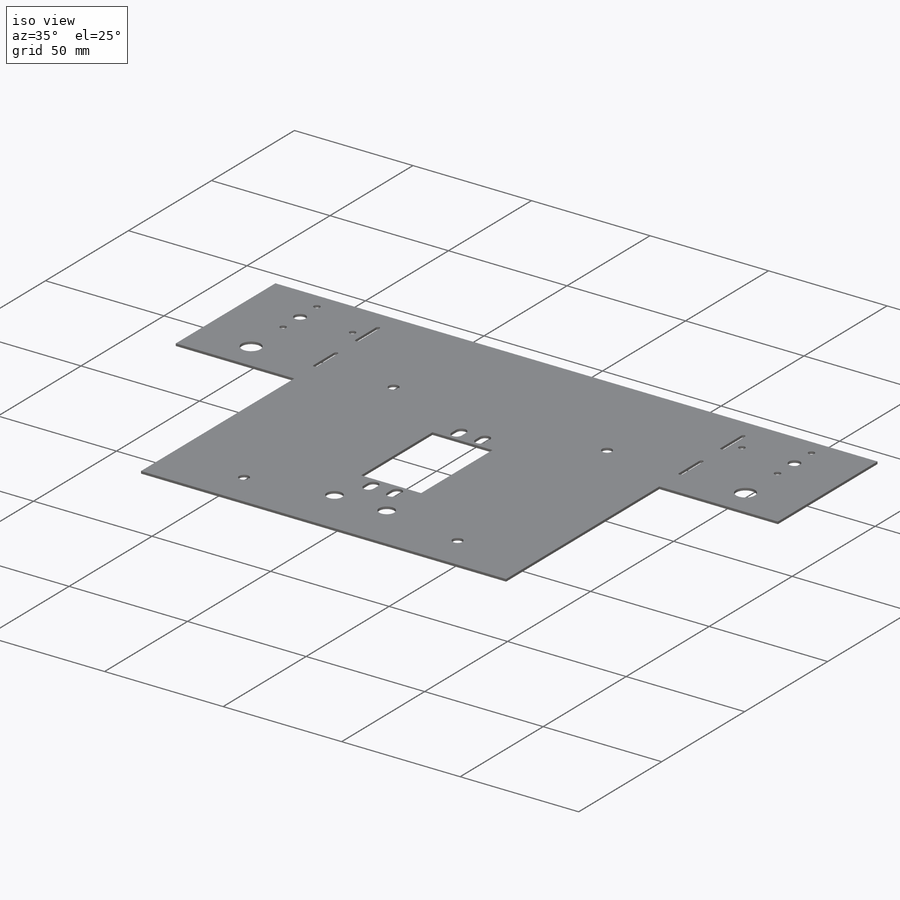
[diagram: iso view]
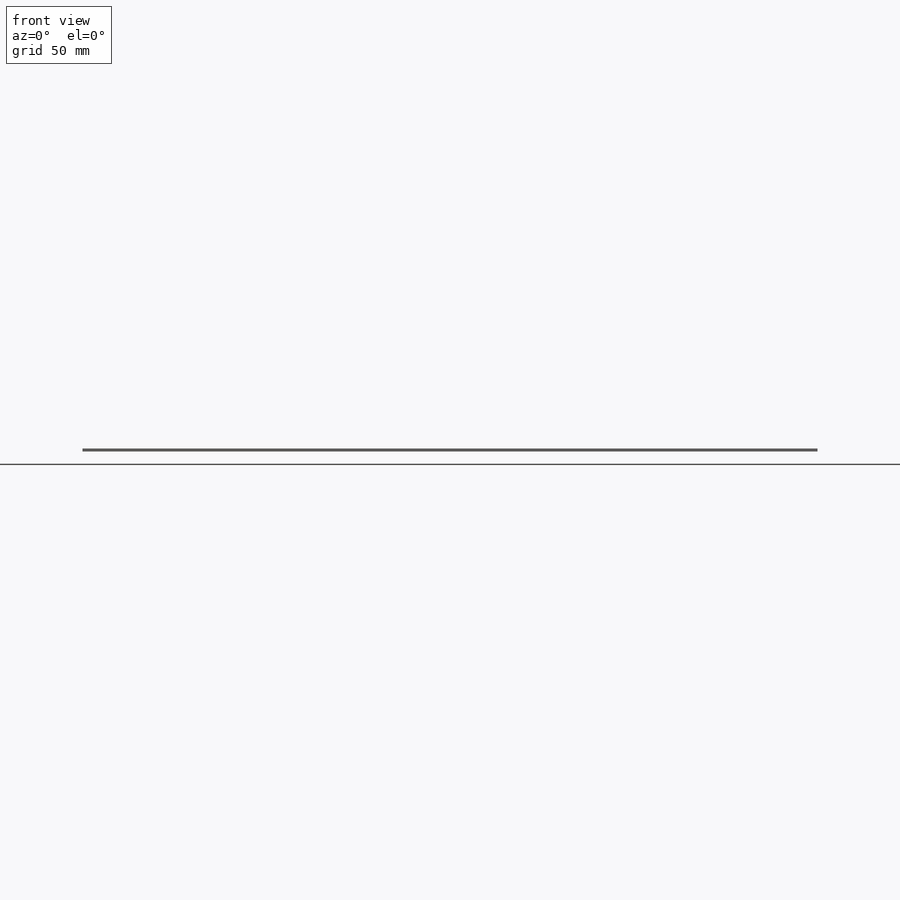
[diagram: front view]
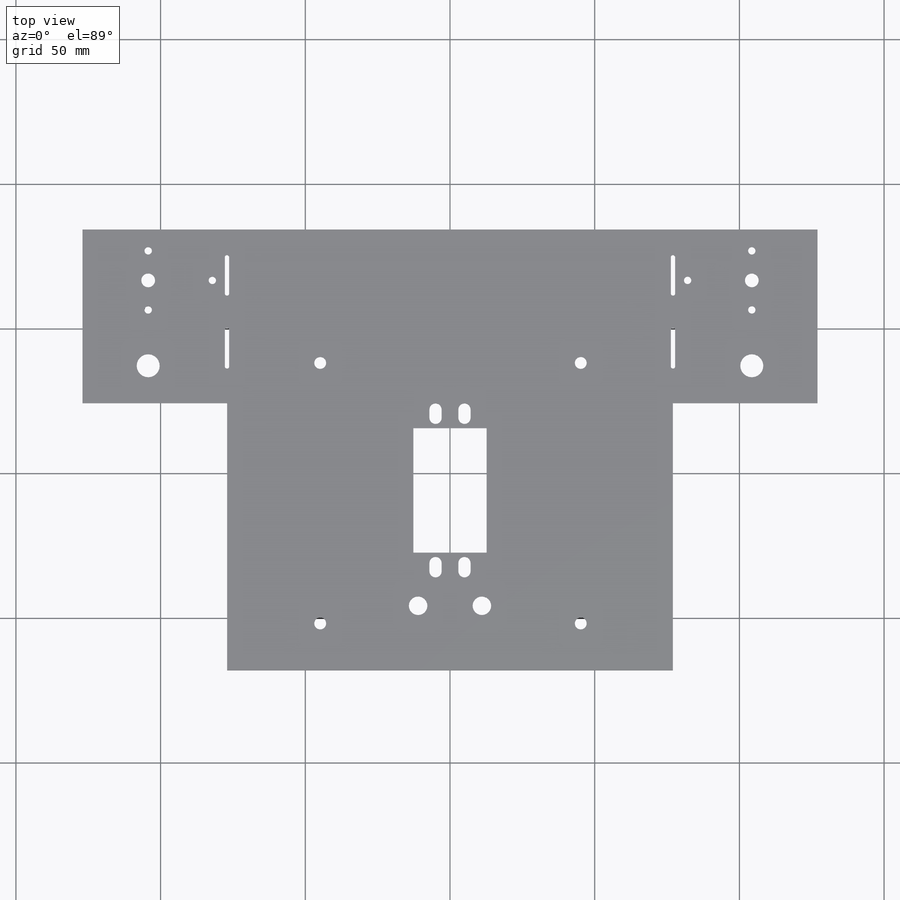
[diagram: top view]
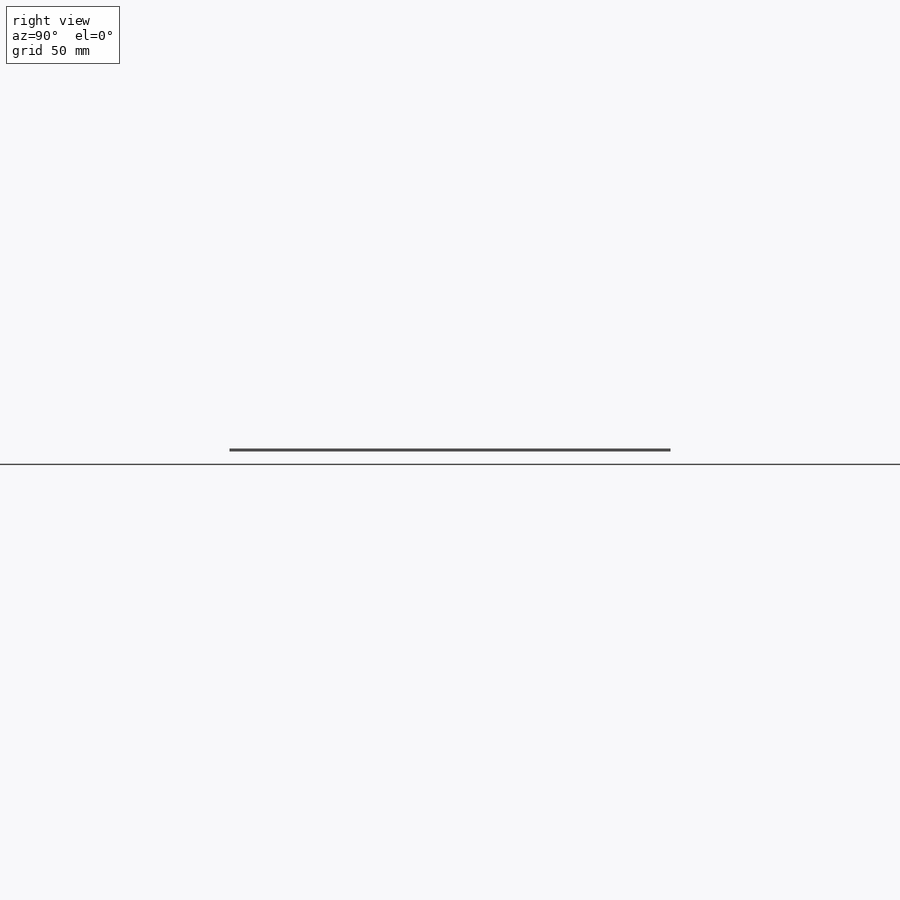
[diagram: right view]
SOLIDWORKS PART (.sldprt)
format: sldprt  version: not decoded by parser v0  size: 878,080 bytes
history: native  units: mm
features: sketch x27, sheet_metal_op x7, cut_extrude x5, material x1, extrude x1 + 7 further entries (+13 scaffold rows collapsed; 8 parser-record rows omitted)
feature tree (69):
  scaffold x13  (default folders/planes/origin — collapsed)
  material  "Material <not specified>"
  sketch  "Sketch1"  dims[c1.D3=3.75mm c1.D11=~100.83687mm c1.D32=4.2mm c1.D9=~0.916339mm c1.D6=~2.469772mm c1.D1=154.0mm c1.D2=298.5mm c2.D3=65.0mm c2.D4=30.0mm c2.D5=30.0mm c3.D3=37.5mm c3.D4=5.0mm c3.D5=~6.79433mm c4.D5=90.0deg c5.D5=5.0mm c5.D6=37.5mm c5.D7=75.0mm c6.D6=10.0mm c6.D8=10.0mm c6.D9=10.0mm c6.D10=10.0mm c6.D11=5.0mm c6.D12=5.0mm c6.D13=5.0mm c6.D14=5.0mm c6.D15=5.0mm c7.D9=20.0mm c7.D2=10.0mm c7.D11=~15.319272mm c7.D12=50.0mm c7.D13=50.0mm c8.D2=10.0mm c8.D11=10.0mm c8.D12=5.0mm c8.D13=5.0mm c8.D14=5.0mm c8.D15=5.0mm c9.D12=~1570.796327mm c9.D13=10.0mm c9.D14=10.0mm c9.D15=5.0mm c9.D16=5.0mm c10.D13=5.0mm c10.D14=5.0mm c10.D17=5.0mm c10.D18=5.0mm c10.D11=5.0mm c11.D13=5.0mm c11.D14=5.0mm c11.D15=5.0mm c12.D14=~1570.796327mm c12.D15=~1570.796327mm c12.D16=10.0mm c12.D19=10.0mm c12.D20=15.0mm c12.D21=15.0mm c12.D22=37.5mm c12.D23=10.0mm c12.D24=~1570.796327mm c12.D25=7.07mm c12.D26=7.07mm c12.D27=37.5mm c12.D28=22.5mm c12.D9=10.0mm c13.D16=103.0mm c13.D19=51.5mm c13.D23=~152.364711mm c13.D28=28.75mm c13.D29=11.0mm c13.D30=43.0mm c14.D28=8.45mm c14.D29=11.0mm c14.D31=11.0mm c15.D29=5.0mm c15.D31=5.0mm c15.D9=12.5mm c15.D16=20.0mm c15.D19=12.5mm c15.D4=22.34mm c15.D5=11.02mm c15.D1=1.0mm c15.D2=0.5 c15.D3=0.0deg c15.D6=~28.64789deg]
  sheet_metal_op  "Base-Flange1"
  sketch  "Sketch2"  dims[D3=4.1mm D6=4.1mm D7=4.1mm D8=4.1mm D1=102.4mm D2=102.4mm D4=6.18mm D5=6.18mm D9=6.18mm D10=6.18mm D11=10.0mm]
  sketch  "Sketch7"
  sketch  "Sketch8"
  sketch  "Sketch9"
  sketch  "Sketch10"  dims[c1.D1=~70.868438mm c1.D2=~79.98562mm c2.D1=50.0mm c2.D2=60.0mm c2.D3=60.0mm c2.D4=~61.078019mm c3.D3=50.0mm c3.D4=60.0mm]
  extrude  "Boss-Extrude2"  Depth=1mm
  sketch  "Sketch11"  dims[c1.D1=7.95mm c1.D2=7.95mm c1.D4=~10.281413mm c1.D6=2.54mm c1.D7=4.75mm c1.D10=2.54mm c2.D2=12.93mm c2.D3=22.71mm c2.D4=32.22mm c2.D5=~34.243182mm c3.D4=32.22mm c3.D5=22.71mm c3.D8=22.71mm c3.D9=29.5mm c3.D11=7.36mm c3.D12=22.71mm]
  cut_extrude  "Cut-Extrude6"  Depth=1mm
  sketch  "Sketch12"  dims[D1=2.54mm D2=44.88mm D3=17.57mm]
  cut_extrude  "Cut-Extrude7"  Depth=1mm
  sketch  "Sketch13"  dims[c1.D1=7.95mm c1.D4=2.54mm c1.D7=4.75mm c1.D10=2.54mm c1.D13=2.54mm c1.D15=2.54mm c1.D2=22.71mm c1.D3=12.93mm c1.D5=22.71mm c1.D6=32.22mm c1.D8=29.5mm c1.D9=22.71mm c1.D11=22.71mm c1.D12=7.36mm c1.D14=22.17mm c2.D15=17.57mm]
  cut_extrude  "Cut-Extrude8"  Depth=1mm
  sketch  "Sketch14"
  sketch  "Sketch19"  dims[D1=~9.188509mm]
  parser-record x8  (decoder bookkeeping rows leaked as tree rows — omitted from the tree; the rows remain in map.json)
  sketch  "Sketch20"  dims[D1=~136.22566mm Sketched Bend2=0.0]
  "SketchBend2"
  cut_extrude  "Cut-Extrude9"  Depth=1mm
  sketch  "Bend-Lines1"
  sketch  "Bounding-Box1"
  sketch  "Sketch24"  dims[c1.D3=3.75mm c1.D11=~100.83687mm c1.D32=4.2mm c1.D9=~0.916339mm c1.D1=154.0mm c1.D2=298.5mm c2.D3=65.0mm c2.D4=30.0mm c2.D5=30.0mm c3.D3=37.5mm c3.D4=5.0mm c3.D5=5.0mm c3.D6=37.5mm c3.D7=75.0mm c4.D6=10.0mm c4.D8=10.0mm c4.D9=10.0mm c4.D10=10.0mm c4.D11=5.0mm c4.D12=5.0mm c4.D13=5.0mm c4.D14=5.0mm c4.D15=5.0mm c5.D9=20.0mm c5.D2=10.0mm c5.D11=~15.319272mm c5.D12=50.0mm c5.D13=50.0mm c6.D2=10.0mm c6.D11=10.0mm c6.D12=5.0mm c6.D13=5.0mm c6.D14=5.0mm c6.D15=5.0mm c7.D12=~1570.796327mm c7.D13=10.0mm c7.D14=10.0mm c7.D15=5.0mm c7.D16=5.0mm c8.D13=5.0mm c8.D14=5.0mm c8.D17=5.0mm c8.D18=5.0mm c8.D11=5.0mm c9.D13=5.0mm c9.D14=5.0mm c9.D15=5.0mm c10.D14=~1570.796327mm c10.D15=~1570.796327mm c10.D16=10.0mm c10.D19=10.0mm c10.D20=15.0mm c10.D21=15.0mm c10.D22=37.5mm c10.D23=10.0mm c10.D24=~1570.796327mm c10.D25=7.07mm c10.D26=7.07mm c10.D27=37.5mm c10.D28=22.5mm c10.D9=10.0mm c11.D16=103.0mm c11.D19=51.5mm c11.D23=~152.364711mm c11.D28=28.75mm c11.D29=11.0mm c11.D30=43.0mm c12.D28=8.45mm c12.D29=11.0mm c12.D31=11.0mm c13.D29=5.0mm c13.D31=5.0mm c13.D9=12.5mm c13.D16=20.0mm]
  cut_extrude  "Cut-Extrude10"  Depth=1mm
  sheet_metal_op  "Sheet-Metal(1)"
  "Flat-Pattern(1)"
  sketch  "Bend-Lines2"
  sketch  "Bounding-Box2"
  sheet_metal_op  "Sheet-Metal(21)"
  "Flat-Pattern(1)"
  sketch  "Bend-Lines2"
  sketch  "Bounding-Box2"
  sheet_metal_op  "Sheet-Metal(22)"
  "Flat-Pattern(1)"
  sketch  "Bend-Lines2"
  sketch  "Bounding-Box2"
  sheet_metal_op  "Sheet-Metal(23)"
  "Flat-Pattern(1)"
  sketch  "Bend-Lines2"
  sketch  "Bounding-Box2"
  sheet_metal_op  "Sheet-Metal(24)"
  "Flat-Pattern(1)"
  sketch  "Bend-Lines2"
  sketch  "Bounding-Box2"
  sheet_metal_op  "Sheet-Metal(30)"
  "Flat-Pattern(1)"
  sketch  "Bend-Lines2"
  sketch  "Bounding-Box2"
decode coverage: 15 of 40 modeling features carry decoded parameters; 7 rows unclassified (native names shown)
note: ~ marks probable driven/reference dimensions
summary: [note 2] (x5 features) parser:v0:name_prior (class ref resolved by constrained assignment + name prior)
note: suppression state not decoded; provenance and decode notes live in map.json
